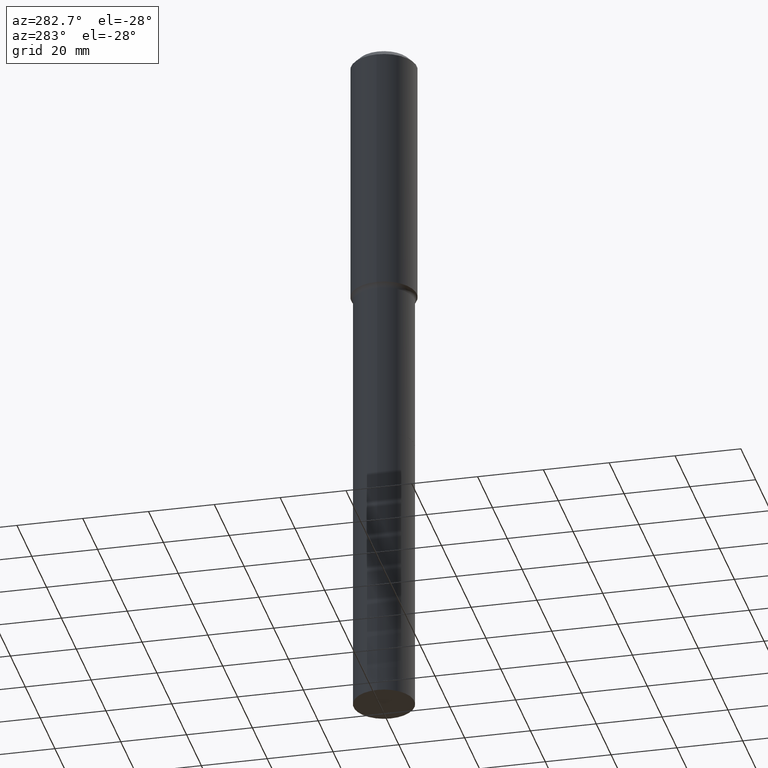
[diagram: clean part render]
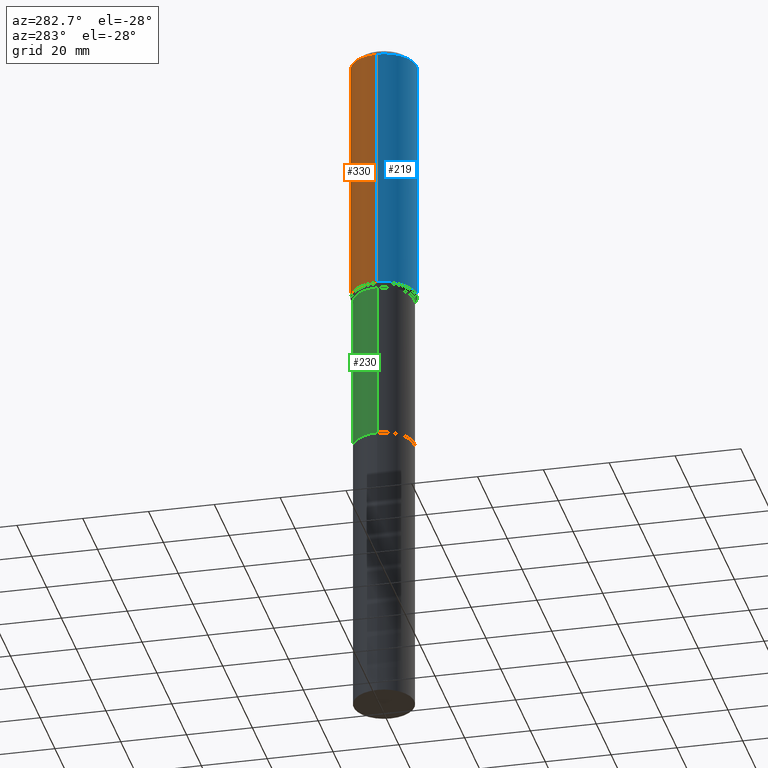
[diagram: same view with three faces highlighted in distinct colors, each labeled with its STEP entity id]
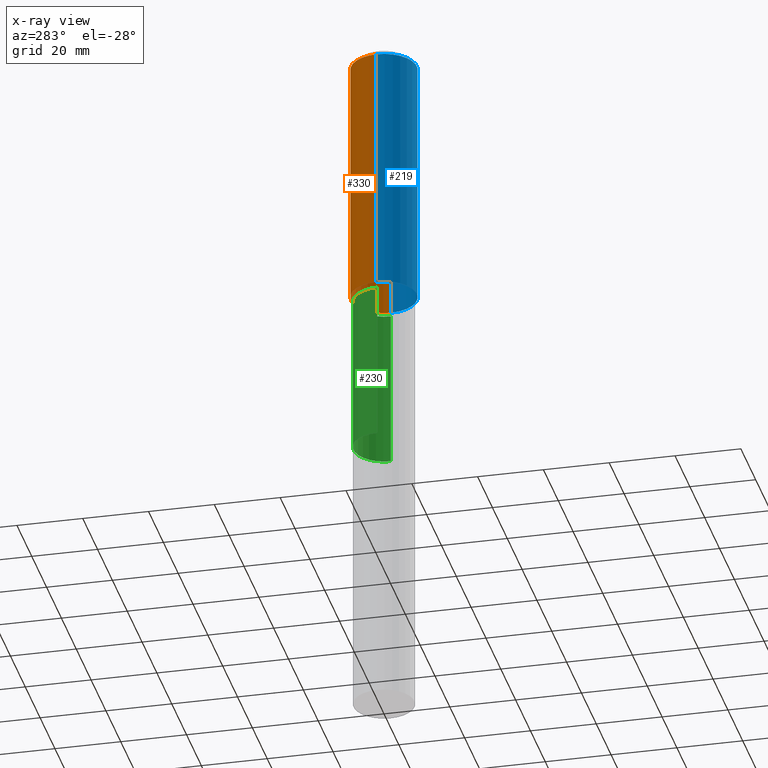
[diagram: x-ray of the same camera — body ghosted, the three highlighted faces saturated]
A machine part, auxiliary view with three faces highlighted in distinct colors.
The next image is the same camera in x-ray (body ghosted, the three faces saturated) — at least one of them is partly hidden behind the body in this view.
Their STEP definitions:

[orange] entity #330 — the highlighted cylindrical surface (edge-blend (fillet) strip) has radius 10 mm, axis along (-0, 0, 1).
#18 = VERTEX_POINT ( 'NONE', #186 ) ;
#29 = CARTESIAN_POINT ( 'NONE',  ( -0.3937000000000001054, -2.728104543901758760E-15, -0.07874000000000055954 ) ) ;
#30 = CARTESIAN_POINT ( 'NONE',  ( -0.3937000000000004385, -7.978696597870522722E-15, -3.086398666569575511 ) ) ;
#31 = CIRCLE ( 'NONE', #131, 0.3937000000000001054 ) ;
#42 = EDGE_CURVE ( 'NONE', #258, #80, #179, .T. ) ;
#64 = DIRECTION ( 'NONE',  ( -2.445468806185136597E-29, 3.491481338843145583E-15, 1.000000000000000000 ) ) ;
#80 = VERTEX_POINT ( 'NONE', #29 ) ;
#100 = DIRECTION ( 'NONE',  ( 1.000000000000000000, -6.982962677686266711E-15, 4.876176775795935793E-29 ) ) ;
#107 = DIRECTION ( 'NONE',  ( -2.445468806185136597E-29, 3.491481338843145583E-15, 1.000000000000000000 ) ) ;
#108 = DIRECTION ( 'NONE',  ( 1.000000000000000000, -6.982962677686266711E-15, 0.000000000000000000 ) ) ;
#131 = AXIS2_PLACEMENT_3D ( 'NONE', #482, #107, #108 ) ;
#138 = CIRCLE ( 'NONE', #175, 0.3937000000000004385 ) ;
#142 = DIRECTION ( 'NONE',  ( -2.445468806185136597E-29, 3.491481338843145583E-15, 1.000000000000000000 ) ) ;
#145 = EDGE_CURVE ( 'NONE', #402, #80, #31, .T. ) ;
#174 = EDGE_CURVE ( 'NONE', #18, #402, #449, .T. ) ;
#175 = AXIS2_PLACEMENT_3D ( 'NONE', #221, #64, #386 ) ;
#179 = LINE ( 'NONE', #337, #465 ) ;
#186 = CARTESIAN_POINT ( 'NONE',  ( 0.3937000000000004385, -1.352529575476312467E-14, -3.086398666569575511 ) ) ;
#196 = CARTESIAN_POINT ( 'NONE',  ( 0.3937000000000001054, -3.024111646825595167E-15, -0.07874000000000055954 ) ) ;
#215 = ORIENTED_EDGE ( 'NONE', *, *, #145, .F. ) ;
#216 = CYLINDRICAL_SURFACE ( 'NONE', #312, 0.3937000000000002164 ) ;
#221 = CARTESIAN_POINT ( 'NONE',  ( 7.547691662547297005E-29, -1.077610334855803987E-14, -3.086398666569575511 ) ) ;
#258 = VERTEX_POINT ( 'NONE', #30 ) ;
#291 = ORIENTED_EDGE ( 'NONE', *, *, #174, .F. ) ;
#295 = DIRECTION ( 'NONE',  ( -2.445468806185136877E-29, 3.491481338843145188E-15, 1.000000000000000000 ) ) ;
#312 = AXIS2_PLACEMENT_3D ( 'NONE', #509, #142, #100 ) ;
#328 = ORIENTED_EDGE ( 'NONE', *, *, #42, .T. ) ;
#330 = ADVANCED_FACE ( 'NONE', ( #476 ), #216, .T. ) ;
#337 = CARTESIAN_POINT ( 'NONE',  ( -0.3937000000000002164, 2.797406750687515970E-15, -1.936584745033357576E-29 ) ) ;
#363 = EDGE_CURVE ( 'NONE', #18, #258, #138, .T. ) ;
#375 = EDGE_LOOP ( 'NONE', ( #405, #328, #215, #291 ) ) ;
#386 = DIRECTION ( 'NONE',  ( 1.000000000000000000, -6.982962677686265922E-15, 0.000000000000000000 ) ) ;
#402 = VERTEX_POINT ( 'NONE', #196 ) ;
#405 = ORIENTED_EDGE ( 'NONE', *, *, #363, .T. ) ;
#406 = DIRECTION ( 'NONE',  ( -2.445468806185136877E-29, 3.491481338843145188E-15, 1.000000000000000000 ) ) ;
#409 = CARTESIAN_POINT ( 'NONE',  ( 0.3937000000000002164, -2.749192406205084794E-15, 1.919750796630861012E-29 ) ) ;
#414 = VECTOR ( 'NONE', #406, 39.37007874015748143 ) ;
#449 = LINE ( 'NONE', #409, #414 ) ;
#465 = VECTOR ( 'NONE', #295, 39.37007874015748143 ) ;
#476 = FACE_OUTER_BOUND ( 'NONE', #375, .T. ) ;
#482 = CARTESIAN_POINT ( 'NONE',  ( 1.925562137990190130E-30, -2.749192406205112109E-16, -0.07874000000000055954 ) ) ;
#509 = CARTESIAN_POINT ( 'NONE',  ( 0.000000000000000000, 0.000000000000000000, 0.000000000000000000 ) ) ;

[blue] entity #219 — the highlighted cylindrical surface (edge-blend (fillet) strip) has radius 10 mm, axis along (-0, 0, 1).
#1 = CARTESIAN_POINT ( 'NONE',  ( 7.547691662547297005E-29, -1.077610334855803987E-14, -3.086398666569575511 ) ) ;
#17 = ORIENTED_EDGE ( 'NONE', *, *, #174, .T. ) ;
#18 = VERTEX_POINT ( 'NONE', #186 ) ;
#29 = CARTESIAN_POINT ( 'NONE',  ( -0.3937000000000001054, -2.728104543901758760E-15, -0.07874000000000055954 ) ) ;
#30 = CARTESIAN_POINT ( 'NONE',  ( -0.3937000000000004385, -7.978696597870522722E-15, -3.086398666569575511 ) ) ;
#34 = ORIENTED_EDGE ( 'NONE', *, *, #451, .F. ) ;
#42 = EDGE_CURVE ( 'NONE', #258, #80, #179, .T. ) ;
#58 = CARTESIAN_POINT ( 'NONE',  ( 0.000000000000000000, 0.000000000000000000, 0.000000000000000000 ) ) ;
#60 = EDGE_LOOP ( 'NONE', ( #455, #147, #17, #34 ) ) ;
#80 = VERTEX_POINT ( 'NONE', #29 ) ;
#83 = AXIS2_PLACEMENT_3D ( 'NONE', #1, #154, #314 ) ;
#119 = AXIS2_PLACEMENT_3D ( 'NONE', #190, #484, #518 ) ;
#147 = ORIENTED_EDGE ( 'NONE', *, *, #470, .T. ) ;
#154 = DIRECTION ( 'NONE',  ( -2.445468806185136597E-29, 3.491481338843145583E-15, 1.000000000000000000 ) ) ;
#174 = EDGE_CURVE ( 'NONE', #18, #402, #449, .T. ) ;
#179 = LINE ( 'NONE', #337, #465 ) ;
#181 = CIRCLE ( 'NONE', #83, 0.3937000000000004385 ) ;
#186 = CARTESIAN_POINT ( 'NONE',  ( 0.3937000000000004385, -1.352529575476312467E-14, -3.086398666569575511 ) ) ;
#190 = CARTESIAN_POINT ( 'NONE',  ( 1.925562137990190130E-30, -2.749192406205112109E-16, -0.07874000000000055954 ) ) ;
#196 = CARTESIAN_POINT ( 'NONE',  ( 0.3937000000000001054, -3.024111646825595167E-15, -0.07874000000000055954 ) ) ;
#208 = FACE_OUTER_BOUND ( 'NONE', #60, .T. ) ;
#219 = ADVANCED_FACE ( 'NONE', ( #208 ), #376, .T. ) ;
#258 = VERTEX_POINT ( 'NONE', #30 ) ;
#275 = CIRCLE ( 'NONE', #119, 0.3937000000000001054 ) ;
#295 = DIRECTION ( 'NONE',  ( -2.445468806185136877E-29, 3.491481338843145188E-15, 1.000000000000000000 ) ) ;
#314 = DIRECTION ( 'NONE',  ( 1.000000000000000000, -6.982962677686265922E-15, 0.000000000000000000 ) ) ;
#337 = CARTESIAN_POINT ( 'NONE',  ( -0.3937000000000002164, 2.797406750687515970E-15, -1.936584745033357576E-29 ) ) ;
#376 = CYLINDRICAL_SURFACE ( 'NONE', #384, 0.3937000000000002164 ) ;
#379 = DIRECTION ( 'NONE',  ( 1.000000000000000000, -6.982962677686266711E-15, 4.876176775795935793E-29 ) ) ;
#384 = AXIS2_PLACEMENT_3D ( 'NONE', #58, #460, #379 ) ;
#402 = VERTEX_POINT ( 'NONE', #196 ) ;
#406 = DIRECTION ( 'NONE',  ( -2.445468806185136877E-29, 3.491481338843145188E-15, 1.000000000000000000 ) ) ;
#409 = CARTESIAN_POINT ( 'NONE',  ( 0.3937000000000002164, -2.749192406205084794E-15, 1.919750796630861012E-29 ) ) ;
#414 = VECTOR ( 'NONE', #406, 39.37007874015748143 ) ;
#449 = LINE ( 'NONE', #409, #414 ) ;
#451 = EDGE_CURVE ( 'NONE', #80, #402, #275, .T. ) ;
#455 = ORIENTED_EDGE ( 'NONE', *, *, #42, .F. ) ;
#460 = DIRECTION ( 'NONE',  ( -2.445468806185136597E-29, 3.491481338843145583E-15, 1.000000000000000000 ) ) ;
#465 = VECTOR ( 'NONE', #295, 39.37007874015748143 ) ;
#470 = EDGE_CURVE ( 'NONE', #258, #18, #181, .T. ) ;
#484 = DIRECTION ( 'NONE',  ( -2.445468806185136597E-29, 3.491481338843145583E-15, 1.000000000000000000 ) ) ;
#518 = DIRECTION ( 'NONE',  ( 1.000000000000000000, -6.982962677686266711E-15, 0.000000000000000000 ) ) ;

[green] entity #230 — the highlighted cylindrical surface (edge-blend (fillet) strip) has radius 9.2494 mm, axis along (-0, 0, 1).
#4 = CARTESIAN_POINT ( 'NONE',  ( 0.3641499999999998072, -1.353961548389982670E-14, -3.149600000000000843 ) ) ;
#22 = CARTESIAN_POINT ( 'NONE',  ( 0.3641499999999999737, -2.022754798845387430E-14, -5.065100000000001934 ) ) ;
#32 = VECTOR ( 'NONE', #143, 39.37007874015748143 ) ;
#40 = EDGE_CURVE ( 'NONE', #57, #364, #213, .T. ) ;
#52 = EDGE_CURVE ( 'NONE', #248, #57, #158, .T. ) ;
#57 = VERTEX_POINT ( 'NONE', #94 ) ;
#61 = DIRECTION ( 'NONE',  ( 1.000000000000000000, -6.982962677686265922E-15, 4.876176775795935232E-29 ) ) ;
#66 = DIRECTION ( 'NONE',  ( 1.000000000000000000, -6.982962677686263555E-15, 0.000000000000000000 ) ) ;
#69 = DIRECTION ( 'NONE',  ( -2.445468806185136597E-29, 3.491481338843145583E-15, 1.000000000000000000 ) ) ;
#94 = CARTESIAN_POINT ( 'NONE',  ( -0.3641499999999999737, -1.175329450482699147E-14, -5.065100000000001934 ) ) ;
#118 = EDGE_LOOP ( 'NONE', ( #348, #345, #224, #125 ) ) ;
#125 = ORIENTED_EDGE ( 'NONE', *, *, #313, .F. ) ;
#133 = AXIS2_PLACEMENT_3D ( 'NONE', #293, #299, #66 ) ;
#136 = CARTESIAN_POINT ( 'NONE',  ( -0.3641499999999998627, 2.587441372270403851E-15, -1.791230213116323002E-29 ) ) ;
#139 = DIRECTION ( 'NONE',  ( 1.000000000000000000, -6.982962677686266711E-15, 0.000000000000000000 ) ) ;
#143 = DIRECTION ( 'NONE',  ( -2.445468806185136877E-29, 3.491481338843145188E-15, 1.000000000000000000 ) ) ;
#158 = CIRCLE ( 'NONE', #133, 0.3641499999999999737 ) ;
#165 = CIRCLE ( 'NONE', #508, 0.3641499999999998072 ) ;
#171 = VERTEX_POINT ( 'NONE', #4 ) ;
#213 = LINE ( 'NONE', #136, #32 ) ;
#224 = ORIENTED_EDGE ( 'NONE', *, *, #237, .F. ) ;
#225 = CYLINDRICAL_SURFACE ( 'NONE', #250, 0.3641499999999998627 ) ;
#230 = ADVANCED_FACE ( 'NONE', ( #431 ), #225, .T. ) ;
#237 = EDGE_CURVE ( 'NONE', #171, #364, #165, .T. ) ;
#248 = VERTEX_POINT ( 'NONE', #22 ) ;
#250 = AXIS2_PLACEMENT_3D ( 'NONE', #346, #69, #61 ) ;
#266 = VECTOR ( 'NONE', #507, 39.37007874015748143 ) ;
#267 = CARTESIAN_POINT ( 'NONE',  ( -0.3641499999999998072, -1.175329450482699304E-14, -3.149600000000000843 ) ) ;
#293 = CARTESIAN_POINT ( 'NONE',  ( 1.238654405020833793E-28, -1.768470212937442148E-14, -5.065100000000001934 ) ) ;
#299 = DIRECTION ( 'NONE',  ( -2.445468806185136597E-29, 3.491481338843145583E-15, 1.000000000000000000 ) ) ;
#313 = EDGE_CURVE ( 'NONE', #248, #171, #394, .T. ) ;
#339 = CARTESIAN_POINT ( 'NONE',  ( 0.3641499999999998627, -2.542845859079452817E-15, 1.775659772906089126E-29 ) ) ;
#345 = ORIENTED_EDGE ( 'NONE', *, *, #40, .T. ) ;
#346 = CARTESIAN_POINT ( 'NONE',  ( 0.000000000000000000, 0.000000000000000000, 0.000000000000000000 ) ) ;
#348 = ORIENTED_EDGE ( 'NONE', *, *, #52, .T. ) ;
#364 = VERTEX_POINT ( 'NONE', #267 ) ;
#388 = CARTESIAN_POINT ( 'NONE',  ( 7.702248551960707832E-29, -1.099676962482037389E-14, -3.149600000000000843 ) ) ;
#394 = LINE ( 'NONE', #339, #266 ) ;
#429 = DIRECTION ( 'NONE',  ( -2.445468806185136597E-29, 3.491481338843145583E-15, 1.000000000000000000 ) ) ;
#431 = FACE_OUTER_BOUND ( 'NONE', #118, .T. ) ;
#507 = DIRECTION ( 'NONE',  ( -2.445468806185136877E-29, 3.491481338843145188E-15, 1.000000000000000000 ) ) ;
#508 = AXIS2_PLACEMENT_3D ( 'NONE', #388, #429, #139 ) ;